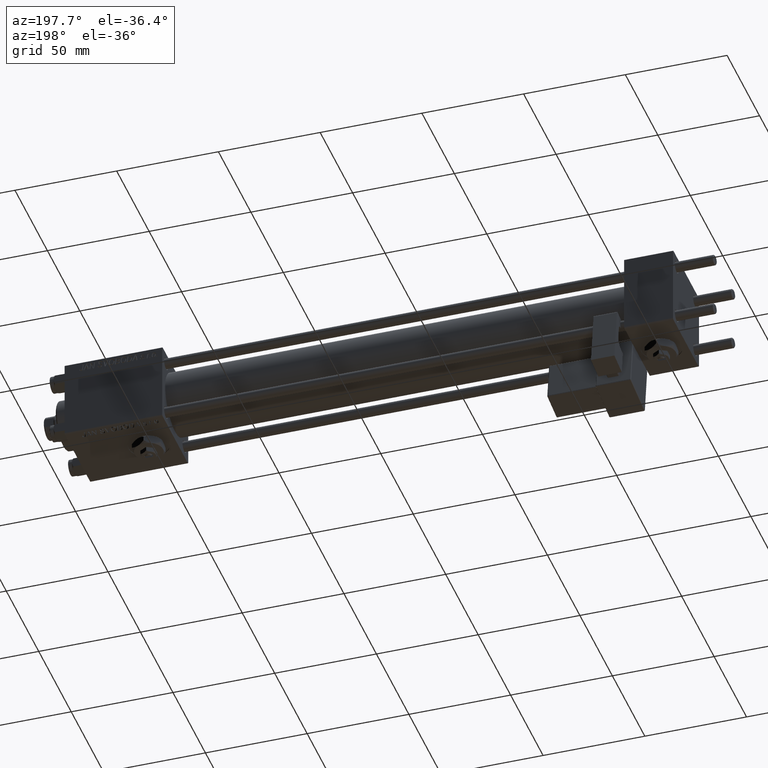
[diagram: clean part render]
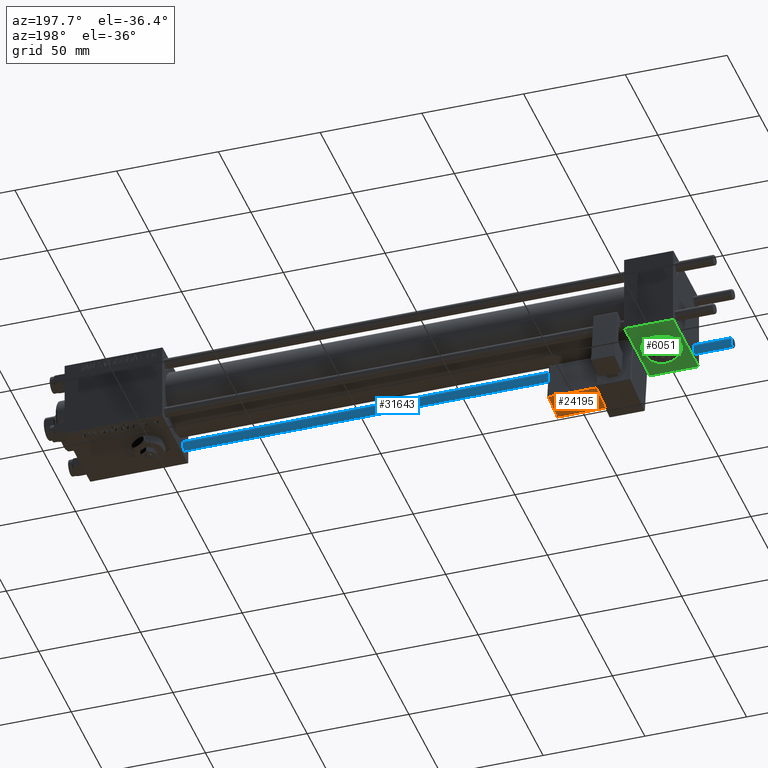
[diagram: same view with three faces highlighted in distinct colors, each labeled with its STEP entity id]
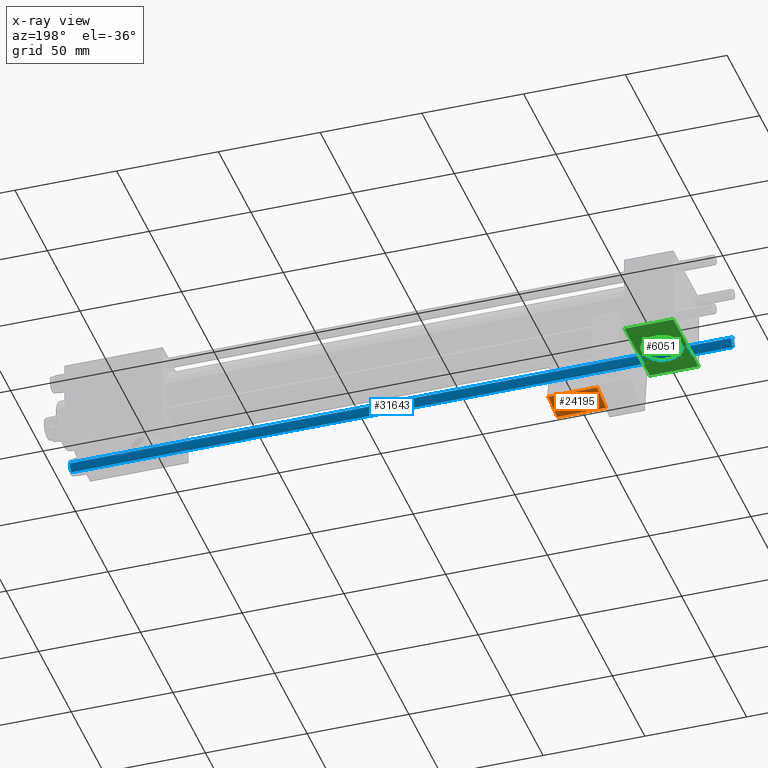
[diagram: x-ray of the same camera — body ghosted, the three highlighted faces saturated]
A machine part, auxiliary view with three faces highlighted in distinct colors.
The next image is the same camera in x-ray (body ghosted, the three faces saturated) — at least one of them is partly hidden behind the body in this view.
Their STEP definitions:

[orange] entity #24195 — the highlighted planar face has unit normal (-0, -0.1399, 0.9902).
#545 = PLANE ( 'NONE',  #11771 ) ;
#2593 = VECTOR ( 'NONE', #51526, 1000.000000000000000 ) ;
#5725 = LINE ( 'NONE', #35514, #48681 ) ;
#7243 = CARTESIAN_POINT ( 'NONE',  ( 33.75000000000000000, -28.74999999999999645, 2.000000000000003109 ) ) ;
#9372 = ORIENTED_EDGE ( 'NONE', *, *, #12037, .T. ) ;
#9531 = LINE ( 'NONE', #25928, #32587 ) ;
#11771 = AXIS2_PLACEMENT_3D ( 'NONE', #46452, #12852, #29530 ) ;
#12037 = EDGE_CURVE ( 'NONE', #39465, #17203, #40318, .T. ) ;
#12852 = DIRECTION ( 'NONE',  ( -1.334402673828313339E-16, -1.156482317317871725E-16, 1.000000000000000000 ) ) ;
#17203 = VERTEX_POINT ( 'NONE', #30800 ) ;
#20333 = DIRECTION ( 'NONE',  ( -1.000000000000000000, 0.000000000000000000, -1.334402673828313339E-16 ) ) ;
#21028 = VECTOR ( 'NONE', #20333, 1000.000000000000000 ) ;
#23426 = VERTEX_POINT ( 'NONE', #33261 ) ;
#24195 = ADVANCED_FACE ( 'NONE', ( #33615 ), #545, .F. ) ;
#24360 = ORIENTED_EDGE ( 'NONE', *, *, #46716, .T. ) ;
#25928 = CARTESIAN_POINT ( 'NONE',  ( 9.250000000000005329, -14.24999999999999822, 2.000000000000001776 ) ) ;
#26003 = VERTEX_POINT ( 'NONE', #35572 ) ;
#27188 = EDGE_CURVE ( 'NONE', #23426, #26003, #5725, .T. ) ;
#29530 = DIRECTION ( 'NONE',  ( 1.000000000000000000, 0.000000000000000000, 1.334402673828313339E-16 ) ) ;
#30800 = CARTESIAN_POINT ( 'NONE',  ( 9.250000000000005329, -28.74999999999999645, 2.000000000000000000 ) ) ;
#31301 = CARTESIAN_POINT ( 'NONE',  ( 33.25000000000000000, -29.25000000000000000, 2.000000000000003109 ) ) ;
#32587 = VECTOR ( 'NONE', #47505, 1000.000000000000000 ) ;
#33261 = CARTESIAN_POINT ( 'NONE',  ( 9.250000000000005329, -14.75000000000000000, 2.000000000000001332 ) ) ;
#33615 = FACE_OUTER_BOUND ( 'NONE', #51102, .T. ) ;
#34009 = CARTESIAN_POINT ( 'NONE',  ( 33.25000000000000000, -28.74999999999999645, 2.000000000000003109 ) ) ;
#35047 = EDGE_CURVE ( 'NONE', #26003, #39465, #47700, .T. ) ;
#35514 = CARTESIAN_POINT ( 'NONE',  ( 33.75000000000000000, -14.75000000000000000, 2.000000000000004885 ) ) ;
#35572 = CARTESIAN_POINT ( 'NONE',  ( 33.25000000000000000, -14.75000000000000000, 2.000000000000004885 ) ) ;
#39465 = VERTEX_POINT ( 'NONE', #34009 ) ;
#40318 = LINE ( 'NONE', #7243, #21028 ) ;
#46452 = CARTESIAN_POINT ( 'NONE',  ( 33.75000000000000000, -14.24999999999999822, 2.000000000000004885 ) ) ;
#46716 = EDGE_CURVE ( 'NONE', #17203, #23426, #9531, .T. ) ;
#47505 = DIRECTION ( 'NONE',  ( -1.543213096464132036E-32, 1.000000000000000000, 1.156482317317871725E-16 ) ) ;
#47700 = LINE ( 'NONE', #31301, #2593 ) ;
#47805 = DIRECTION ( 'NONE',  ( 1.000000000000000000, -0.000000000000000000, 1.334402673828313339E-16 ) ) ;
#48681 = VECTOR ( 'NONE', #47805, 1000.000000000000000 ) ;
#50994 = ORIENTED_EDGE ( 'NONE', *, *, #27188, .T. ) ;
#51102 = EDGE_LOOP ( 'NONE', ( #52142, #9372, #24360, #50994 ) ) ;
#51526 = DIRECTION ( 'NONE',  ( 5.473822126268816683E-48, -1.000000000000000000, -1.156482317317871725E-16 ) ) ;
#52142 = ORIENTED_EDGE ( 'NONE', *, *, #35047, .T. ) ;

[blue] entity #31643 — the highlighted cylindrical surface (edge-blend (fillet) strip) has radius 2.5 mm, axis along (-1, 0, 0).
#1847 = CARTESIAN_POINT ( 'NONE',  ( 0.000000000000000000, 0.000000000000000000, 0.4999999999999449329 ) ) ;
#3533 = ORIENTED_EDGE ( 'NONE', *, *, #10990, .T. ) ;
#3594 = DIRECTION ( 'NONE',  ( 1.000000000000000000, 0.000000000000000000, 0.000000000000000000 ) ) ;
#4758 = LINE ( 'NONE', #34000, #39579 ) ;
#5682 = DIRECTION ( 'NONE',  ( -0.000000000000000000, -0.000000000000000000, 1.000000000000000000 ) ) ;
#7801 = CIRCLE ( 'NONE', #31380, 2.500000000000000000 ) ;
#8790 = EDGE_CURVE ( 'NONE', #13750, #20607, #7801, .T. ) ;
#8836 = CARTESIAN_POINT ( 'NONE',  ( 2.500000000000000000, 3.061616997868383141E-16, 0.4999999999999449329 ) ) ;
#9687 = DIRECTION ( 'NONE',  ( -0.000000000000000000, -0.000000000000000000, -1.000000000000000000 ) ) ;
#10990 = EDGE_CURVE ( 'NONE', #17584, #44740, #27133, .T. ) ;
#13125 = DIRECTION ( 'NONE',  ( -1.000000000000000000, 0.000000000000000000, 0.000000000000000000 ) ) ;
#13750 = VERTEX_POINT ( 'NONE', #47572 ) ;
#17528 = EDGE_CURVE ( 'NONE', #20607, #17584, #4758, .T. ) ;
#17584 = VERTEX_POINT ( 'NONE', #52556 ) ;
#18288 = LINE ( 'NONE', #19078, #34713 ) ;
#18538 = DIRECTION ( 'NONE',  ( 1.000000000000000000, 0.000000000000000000, 0.000000000000000000 ) ) ;
#18556 = DIRECTION ( 'NONE',  ( -0.000000000000000000, -0.000000000000000000, -1.000000000000000000 ) ) ;
#19078 = CARTESIAN_POINT ( 'NONE',  ( 2.500000000000000000, 3.061616997868383141E-16, 326.0000000000000000 ) ) ;
#20238 = CYLINDRICAL_SURFACE ( 'NONE', #53072, 2.500000000000000000 ) ;
#20607 = VERTEX_POINT ( 'NONE', #34514 ) ;
#20726 = ORIENTED_EDGE ( 'NONE', *, *, #17528, .T. ) ;
#23868 = DIRECTION ( 'NONE',  ( 0.000000000000000000, 0.000000000000000000, -1.000000000000000000 ) ) ;
#27133 = CIRCLE ( 'NONE', #41073, 2.500000000000000000 ) ;
#28457 = FACE_OUTER_BOUND ( 'NONE', #32418, .T. ) ;
#29578 = EDGE_CURVE ( 'NONE', #13750, #44740, #18288, .T. ) ;
#31380 = AXIS2_PLACEMENT_3D ( 'NONE', #40271, #23868, #3594 ) ;
#31643 = ADVANCED_FACE ( 'NONE', ( #28457 ), #20238, .T. ) ;
#31717 = ORIENTED_EDGE ( 'NONE', *, *, #29578, .F. ) ;
#32418 = EDGE_LOOP ( 'NONE', ( #31717, #47161, #20726, #3533 ) ) ;
#34000 = CARTESIAN_POINT ( 'NONE',  ( -2.500000000000000000, 0.000000000000000000, 326.0000000000000000 ) ) ;
#34514 = CARTESIAN_POINT ( 'NONE',  ( -2.500000000000000000, 0.000000000000000000, 325.5000000000000000 ) ) ;
#34713 = VECTOR ( 'NONE', #18556, 1000.000000000000000 ) ;
#39358 = DIRECTION ( 'NONE',  ( -0.000000000000000000, -0.000000000000000000, -1.000000000000000000 ) ) ;
#39579 = VECTOR ( 'NONE', #9687, 1000.000000000000000 ) ;
#40271 = CARTESIAN_POINT ( 'NONE',  ( 0.000000000000000000, 0.000000000000000000, 325.5000000000000000 ) ) ;
#41073 = AXIS2_PLACEMENT_3D ( 'NONE', #1847, #5682, #18538 ) ;
#44740 = VERTEX_POINT ( 'NONE', #8836 ) ;
#47161 = ORIENTED_EDGE ( 'NONE', *, *, #8790, .T. ) ;
#47572 = CARTESIAN_POINT ( 'NONE',  ( 2.500000000000000000, 3.061616997868383141E-16, 325.5000000000000000 ) ) ;
#52556 = CARTESIAN_POINT ( 'NONE',  ( -2.500000000000000000, 0.000000000000000000, 0.4999999999999449329 ) ) ;
#53072 = AXIS2_PLACEMENT_3D ( 'NONE', #53565, #39358, #13125 ) ;
#53565 = CARTESIAN_POINT ( 'NONE',  ( 0.000000000000000000, 0.000000000000000000, 326.0000000000000000 ) ) ;

[green] entity #6051 — the highlighted planar face has unit normal (0, -0, -1).
#553 = VERTEX_POINT ( 'NONE', #45751 ) ;
#834 = EDGE_LOOP ( 'NONE', ( #42919, #9854, #37148, #53587 ) ) ;
#1076 = FACE_OUTER_BOUND ( 'NONE', #834, .T. ) ;
#1094 = ORIENTED_EDGE ( 'NONE', *, *, #2161, .F. ) ;
#1850 = DIRECTION ( 'NONE',  ( -1.000000000000000000, 0.000000000000000000, 0.000000000000000000 ) ) ;
#2161 = EDGE_CURVE ( 'NONE', #553, #41946, #17306, .T. ) ;
#2919 = VECTOR ( 'NONE', #1850, 1000.000000000000000 ) ;
#3331 = DIRECTION ( 'NONE',  ( 0.000000000000000000, -1.000000000000000000, 1.734723475976807094E-16 ) ) ;
#3941 = EDGE_CURVE ( 'NONE', #25539, #50806, #9537, .T. ) ;
#5347 = DIRECTION ( 'NONE',  ( 0.000000000000000000, -1.734723475976806848E-16, -1.000000000000000000 ) ) ;
#6051 = ADVANCED_FACE ( 'NONE', ( #50814, #1076 ), #37723, .T. ) ;
#6658 = EDGE_CURVE ( 'NONE', #25539, #22862, #8339, .T. ) ;
#7028 = CARTESIAN_POINT ( 'NONE',  ( 0.000000000000000000, -19.50000000000000711, -20.00000000000000000 ) ) ;
#7179 = VECTOR ( 'NONE', #3331, 1000.000000000000000 ) ;
#7682 = AXIS2_PLACEMENT_3D ( 'NONE', #26227, #21573, #37989 ) ;
#8339 = LINE ( 'NONE', #25834, #22616 ) ;
#9537 = LINE ( 'NONE', #13628, #42662 ) ;
#9813 = DIRECTION ( 'NONE',  ( 0.000000000000000000, -1.000000000000000000, 1.734723475976807094E-16 ) ) ;
#9854 = ORIENTED_EDGE ( 'NONE', *, *, #6658, .T. ) ;
#10604 = LINE ( 'NONE', #7028, #2919 ) ;
#11176 = EDGE_CURVE ( 'NONE', #41946, #553, #40199, .T. ) ;
#13544 = CARTESIAN_POINT ( 'NONE',  ( 24.00000000000000000, -19.50000000000000711, -20.00000000000000000 ) ) ;
#13628 = CARTESIAN_POINT ( 'NONE',  ( 0.000000000000000000, 20.00000000000000000, -20.00000000000000711 ) ) ;
#15662 = LINE ( 'NONE', #49249, #7179 ) ;
#17306 = CIRCLE ( 'NONE', #23395, 10.00000000000000178 ) ;
#17702 = EDGE_CURVE ( 'NONE', #22862, #20421, #15662, .T. ) ;
#18402 = AXIS2_PLACEMENT_3D ( 'NONE', #46881, #5347, #25319 ) ;
#20421 = VERTEX_POINT ( 'NONE', #13544 ) ;
#20655 = CARTESIAN_POINT ( 'NONE',  ( 0.000000000000000000, -19.50000000000000711, -20.00000000000000000 ) ) ;
#21271 = EDGE_CURVE ( 'NONE', #20421, #50806, #10604, .T. ) ;
#21573 = DIRECTION ( 'NONE',  ( 0.000000000000000000, -1.734723475976806848E-16, -1.000000000000000000 ) ) ;
#22616 = VECTOR ( 'NONE', #25021, 1000.000000000000000 ) ;
#22862 = VERTEX_POINT ( 'NONE', #40472 ) ;
#23395 = AXIS2_PLACEMENT_3D ( 'NONE', #53639, #28004, #49017 ) ;
#24193 = CARTESIAN_POINT ( 'NONE',  ( 0.000000000000000000, 19.50000000000000711, -20.00000000000000711 ) ) ;
#25021 = DIRECTION ( 'NONE',  ( 1.000000000000000000, 0.000000000000000000, 0.000000000000000000 ) ) ;
#25319 = DIRECTION ( 'NONE',  ( 0.000000000000000000, 1.000000000000000000, 0.000000000000000000 ) ) ;
#25539 = VERTEX_POINT ( 'NONE', #24193 ) ;
#25834 = CARTESIAN_POINT ( 'NONE',  ( 24.00000000000000000, 19.50000000000000711, -20.00000000000000711 ) ) ;
#26227 = CARTESIAN_POINT ( 'NONE',  ( 24.00000000000000000, 20.00000000000000000, -20.00000000000000711 ) ) ;
#28004 = DIRECTION ( 'NONE',  ( 0.000000000000000000, -1.734723475976806848E-16, -1.000000000000000000 ) ) ;
#33103 = ORIENTED_EDGE ( 'NONE', *, *, #11176, .F. ) ;
#33208 = CARTESIAN_POINT ( 'NONE',  ( 12.00000000000000000, 9.999999999999996447, -20.00000000000000355 ) ) ;
#34128 = EDGE_LOOP ( 'NONE', ( #33103, #1094 ) ) ;
#37148 = ORIENTED_EDGE ( 'NONE', *, *, #17702, .T. ) ;
#37723 = PLANE ( 'NONE',  #7682 ) ;
#37989 = DIRECTION ( 'NONE',  ( 0.000000000000000000, 1.000000000000000000, -1.734723475976806848E-16 ) ) ;
#40199 = CIRCLE ( 'NONE', #18402, 10.00000000000000178 ) ;
#40472 = CARTESIAN_POINT ( 'NONE',  ( 24.00000000000000000, 19.50000000000000711, -20.00000000000000711 ) ) ;
#41946 = VERTEX_POINT ( 'NONE', #33208 ) ;
#42662 = VECTOR ( 'NONE', #9813, 1000.000000000000000 ) ;
#42919 = ORIENTED_EDGE ( 'NONE', *, *, #3941, .F. ) ;
#45751 = CARTESIAN_POINT ( 'NONE',  ( 12.00000000000000178, -10.00000000000000711, -20.00000000000000355 ) ) ;
#46881 = CARTESIAN_POINT ( 'NONE',  ( 12.00000000000000000, -4.939023110930437544E-15, -20.00000000000000355 ) ) ;
#49017 = DIRECTION ( 'NONE',  ( 0.000000000000000000, 1.000000000000000000, 0.000000000000000000 ) ) ;
#49249 = CARTESIAN_POINT ( 'NONE',  ( 24.00000000000000000, 20.00000000000000000, -20.00000000000000711 ) ) ;
#50806 = VERTEX_POINT ( 'NONE', #20655 ) ;
#50814 = FACE_BOUND ( 'NONE', #34128, .T. ) ;
#53587 = ORIENTED_EDGE ( 'NONE', *, *, #21271, .T. ) ;
#53639 = CARTESIAN_POINT ( 'NONE',  ( 12.00000000000000000, -4.939023110930437544E-15, -20.00000000000000355 ) ) ;